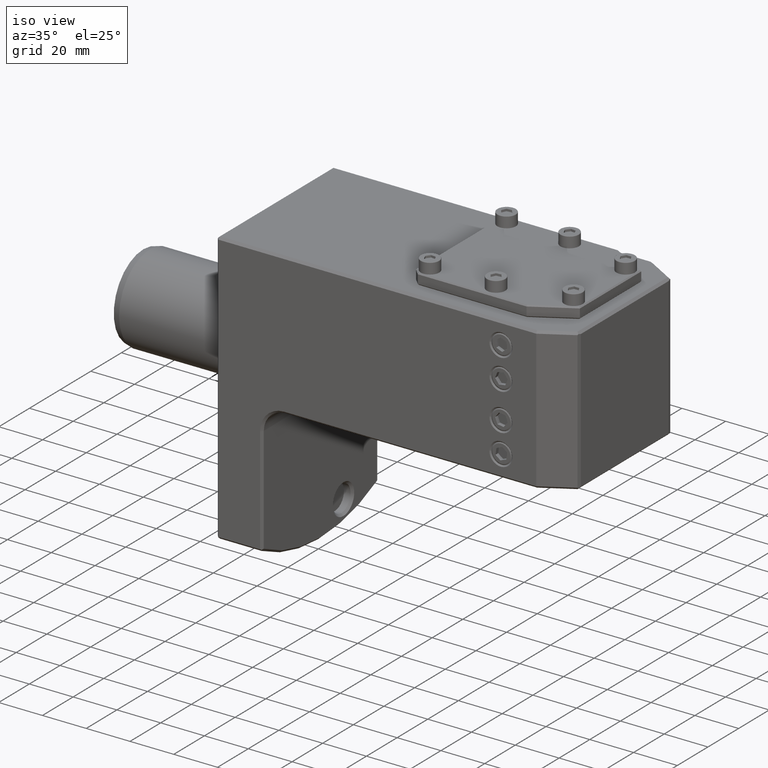
[diagram: clean part render]
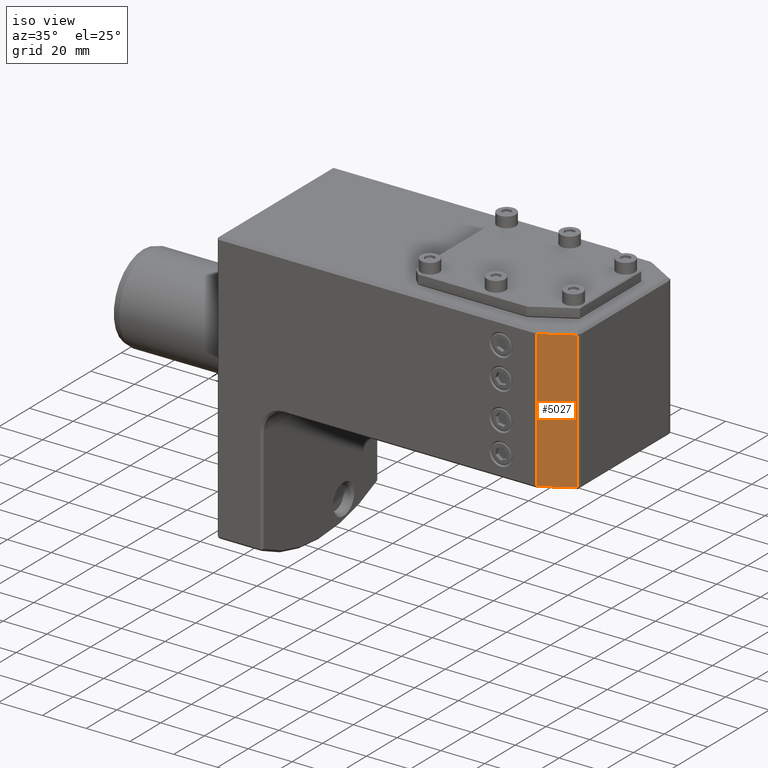
[diagram: same view with one face highlighted and labeled with its STEP entity id]
A machine part, iso view. The second image highlights one B-rep face of the part: STEP entity #5027.
In plain terms, the highlighted planar face has unit normal (0.5, -0.866, -0).
Its self-contained STEP definition (entity closure, byte-faithful):
#260 = ORIENTED_EDGE ( 'NONE', *, *, #10094, .F. ) ;
#822 = EDGE_CURVE ( 'NONE', #12731, #8139, #3676, .T. ) ;
#1138 = VERTEX_POINT ( 'NONE', #2234 ) ;
#1181 = FACE_OUTER_BOUND ( 'NONE', #4568, .T. ) ;
#1280 = LINE ( 'NONE', #1541, #4773 ) ;
#1350 = DIRECTION ( 'NONE',  ( 3.899395593725499015E-31, -1.116831286005820049E-16, 1.000000000000000000 ) ) ;
#1541 = CARTESIAN_POINT ( 'NONE',  ( 146.1435935394491423, -37.99999999999948841, 55.00000000000000000 ) ) ;
#2231 = CARTESIAN_POINT ( 'NONE',  ( 160.0000000000001137, -29.99999999999943867, -10.00000000000000000 ) ) ;
#2234 = CARTESIAN_POINT ( 'NONE',  ( 159.5669872981081028, -30.24999999999944222, 54.00000000000000000 ) ) ;
#2484 = ORIENTED_EDGE ( 'NONE', *, *, #6607, .T. ) ;
#2842 = CARTESIAN_POINT ( 'NONE',  ( 146.1435935394491423, -37.99999999999948841, 54.00000000000000000 ) ) ;
#3036 = CARTESIAN_POINT ( 'NONE',  ( 159.5669872981081028, -30.24999999999944222, -9.000000000000000000 ) ) ;
#3555 = DIRECTION ( 'NONE',  ( 0.8660254037844370423, 0.5000000000000029976, -1.080801869595079831E-16 ) ) ;
#3676 = LINE ( 'NONE', #6815, #12849 ) ;
#3836 = LINE ( 'NONE', #11771, #10095 ) ;
#4064 = DIRECTION ( 'NONE',  ( -0.8660254037844370423, -0.5000000000000029976, -3.755786496842899427E-17 ) ) ;
#4260 = CARTESIAN_POINT ( 'NONE',  ( 160.0000000000001137, -29.99999999999943867, 54.00000000000000000 ) ) ;
#4568 = EDGE_LOOP ( 'NONE', ( #6993, #2484, #6831, #260 ) ) ;
#4773 = VECTOR ( 'NONE', #1350, 1000.000000000000000 ) ;
#5027 = ADVANCED_FACE ( 'NONE', ( #1181 ), #11016, .T. ) ;
#5117 = CARTESIAN_POINT ( 'NONE',  ( 146.1435935394491423, -37.99999999999948841, -9.000000000000000000 ) ) ;
#5736 = DIRECTION ( 'NONE',  ( 3.837765835505107468E-31, -1.116831286005820049E-16, 1.000000000000000000 ) ) ;
#6027 = EDGE_CURVE ( 'NONE', #1138, #7043, #7010, .T. ) ;
#6607 = EDGE_CURVE ( 'NONE', #8139, #1138, #3836, .T. ) ;
#6815 = CARTESIAN_POINT ( 'NONE',  ( 160.0000000000001137, -29.99999999999943867, -9.000000000000000000 ) ) ;
#6831 = ORIENTED_EDGE ( 'NONE', *, *, #6027, .T. ) ;
#6993 = ORIENTED_EDGE ( 'NONE', *, *, #822, .T. ) ;
#7010 = LINE ( 'NONE', #4260, #7407 ) ;
#7043 = VERTEX_POINT ( 'NONE', #2842 ) ;
#7371 = AXIS2_PLACEMENT_3D ( 'NONE', #2231, #11936, #9044 ) ;
#7407 = VECTOR ( 'NONE', #4064, 999.9999999999998863 ) ;
#8139 = VERTEX_POINT ( 'NONE', #3036 ) ;
#9044 = DIRECTION ( 'NONE',  ( 3.899395593725499015E-31, -1.116831286005820049E-16, 1.000000000000000000 ) ) ;
#10094 = EDGE_CURVE ( 'NONE', #12731, #7043, #1280, .T. ) ;
#10095 = VECTOR ( 'NONE', #5736, 1000.000000000000000 ) ;
#11016 = PLANE ( 'NONE',  #7371 ) ;
#11771 = CARTESIAN_POINT ( 'NONE',  ( 159.5669872981081028, -30.24999999999944222, -10.00000000000000000 ) ) ;
#11936 = DIRECTION ( 'NONE',  ( 0.5000000000000033307, -0.8660254037844367092, -9.672042654222840116E-17 ) ) ;
#12731 = VERTEX_POINT ( 'NONE', #5117 ) ;
#12849 = VECTOR ( 'NONE', #3555, 999.9999999999998863 ) ;